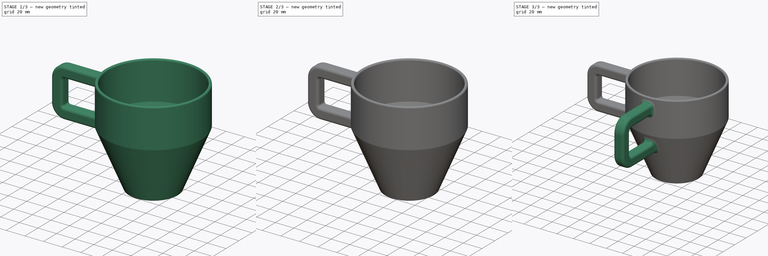
[diagram: build sequence overview — one tinted view per stage of 3, left to right]
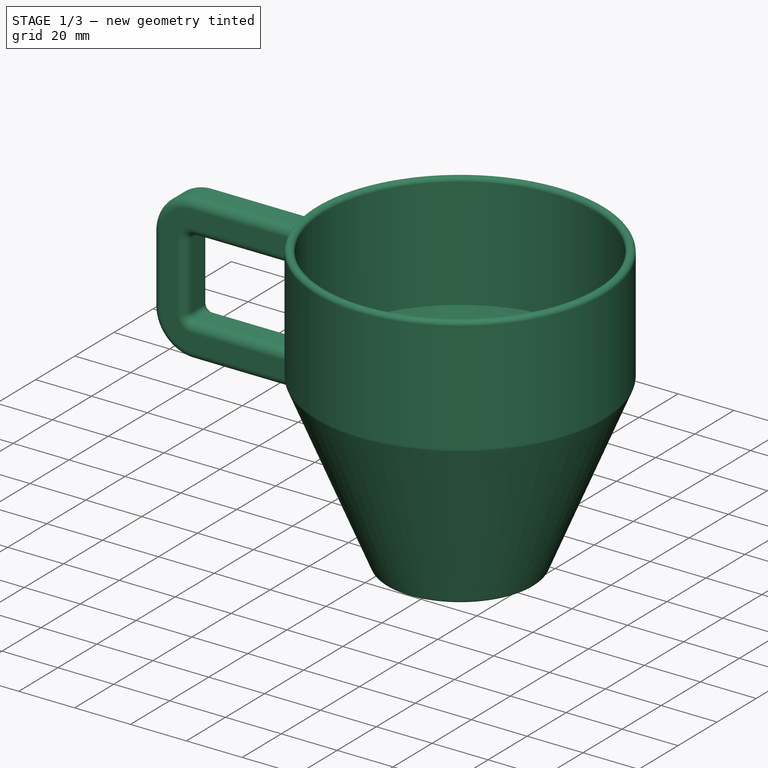
[diagram: stage 1 of 3 — iso view after this stage's code; geometry added in this stage tinted green]
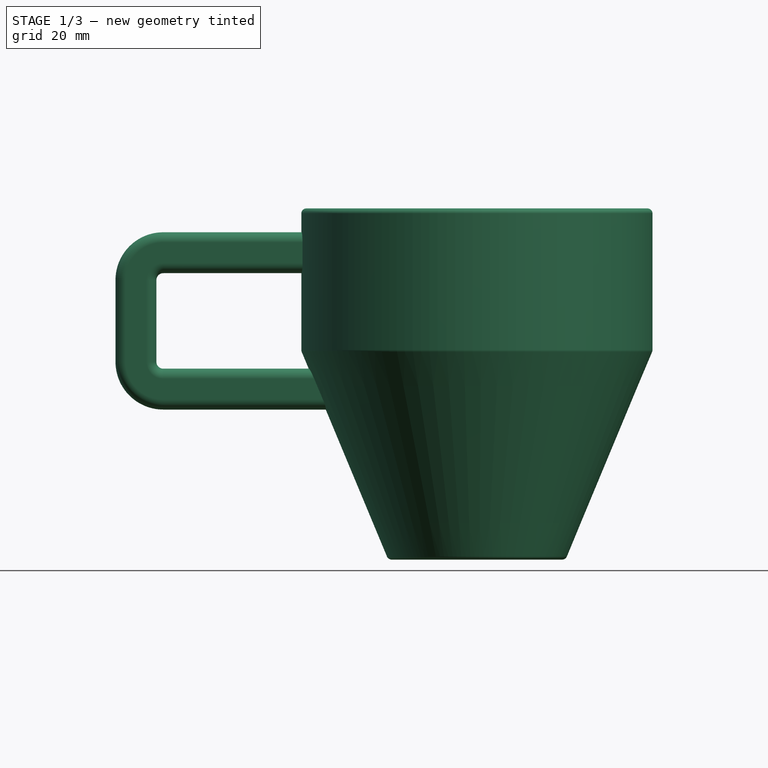
[diagram: stage 1 of 3 — front view after this stage's code; geometry added in this stage tinted green]
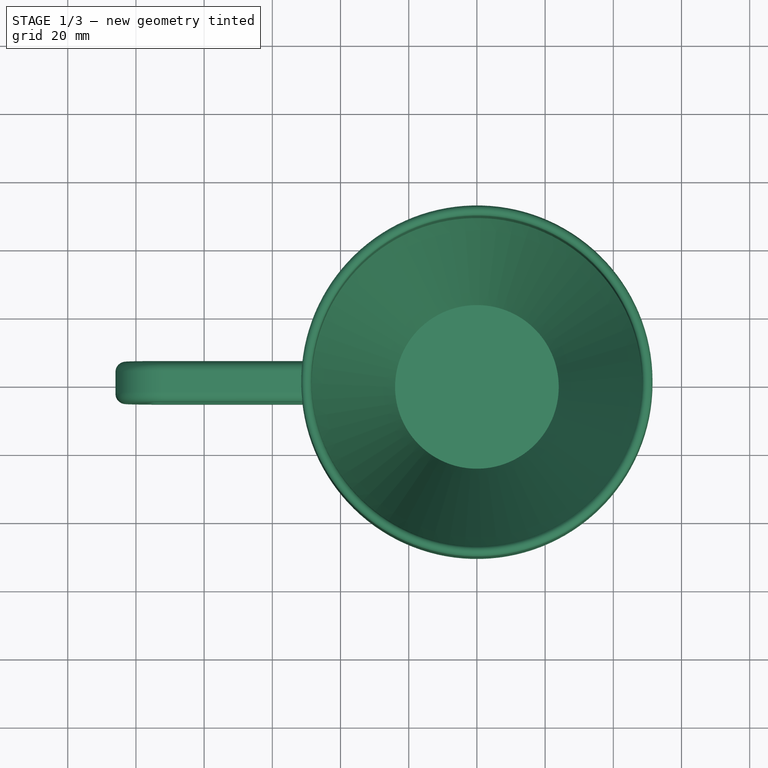
[diagram: stage 1 of 3 — top view after this stage's code; geometry added in this stage tinted green]
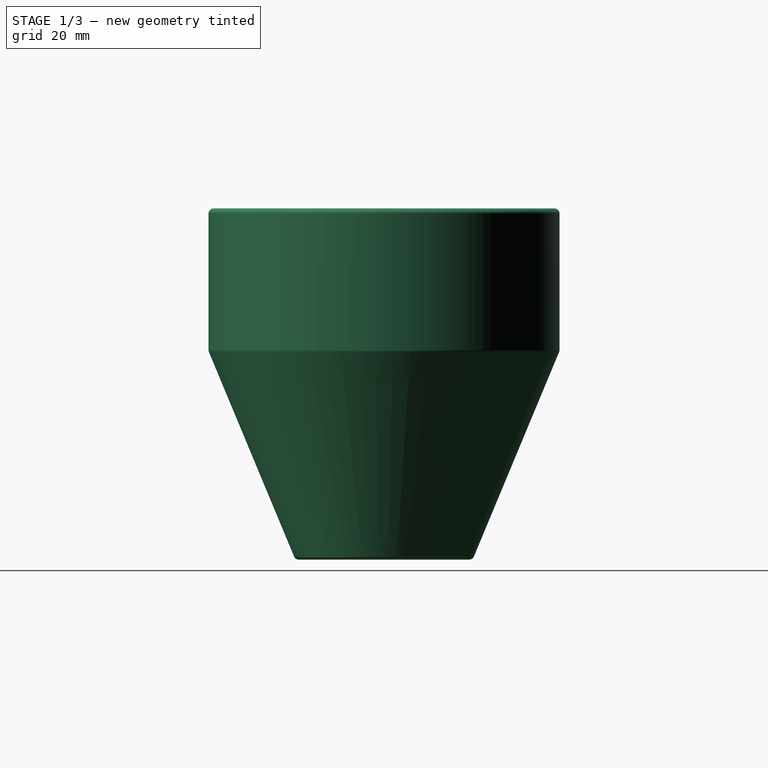
[diagram: stage 1 of 3 — right view after this stage's code; geometry added in this stage tinted green]
FCSTD DOCUMENT  (FreeCAD 1.0R39109 (Git))
Label: Lesson12-Kop
License: All rights reserved
LicenseURL: http://en.wikipedia.org/wiki/All_rights_reserved
objects: Sketcher::SketchObject×6, PartDesign::Revolution×2, PartDesign::AdditivePipe×2, PartDesign::Pad×2, PartDesign::Fillet×2, PartDesign::Body×2
note: 38 computed .brp shape members not serialized (recipe doc carries the construction recipe); baked Part::Feature solids carry a one-line shape summary decoded from their .brp

FEATURE [PartDesign::Body] Body
  AllowCompound = true
  Group = -> [Sketch,Revolution,Sketch001,Sketch002,AdditivePipe,Pad,Fillet]
  Origin = -> Origin
  Tip = -> Fillet
FEATURE [Sketcher::SketchObject] Sketch003
  ArcFitTolerance = 1e-06
  AttachmentSupport = -> [XZ_Plane001]
  FullyConstrained = false
  MakeInternals = false
  MapMode = 5
  Placement = pos=(0,0,0) rot=(1,0,0;1.5708rad)
  sketch-geometry (14):
    g0: LineSegment [constr] StartX=0 StartY=1.5 StartZ=0 EndX=-25 EndY=1.5 EndZ=0
    g1: LineSegment [constr] StartX=-25 StartY=1.5 StartZ=0 EndX=-50 EndY=61.5 EndZ=0
    g2: LineSegment [constr] StartX=-50 StartY=61.5 StartZ=0 EndX=-50 EndY=101.5 EndZ=0
    g3: ArcOfCircle CenterX=-50 CenterY=101.5 CenterZ=0 NormalX=0 NormalY=0 NormalZ=-1 AngleXU=-1.5708 Radius=1.5 StartAngle=1.5708 EndAngle=4.71239
    g4: LineSegment StartX=-48.5 StartY=61.8 StartZ=0 EndX=-48.5 EndY=101.5 EndZ=0
    g5: LineSegment StartX=-24 StartY=3 StartZ=0 EndX=-48.5 EndY=61.8 EndZ=0
    g6: LineSegment StartX=3e-16 StartY=3 StartZ=0 EndX=-24 EndY=3 EndZ=0
    g7: ArcOfCircle [constr] CenterX=0 CenterY=1.5 CenterZ=0 NormalX=0 NormalY=0 NormalZ=-1 AngleXU=0 Radius=1.5 StartAngle=1.5708 EndAngle=4.71239
    g8: LineSegment StartX=3e-16 StartY=0 StartZ=0 EndX=-25 EndY=0 EndZ=0
    g9: ArcOfCircle CenterX=-25 CenterY=1.5 CenterZ=0 NormalX=0 NormalY=0 NormalZ=-1 AngleXU=-3.14159 Radius=1.5 StartAngle=1.5708 EndAngle=2.7468
    g10: LineSegment StartX=-26.3846 StartY=0.923077 StartZ=0 EndX=-51.3846 EndY=60.9231 EndZ=0
    g11: ArcOfCircle CenterX=-50 CenterY=61.5 CenterZ=0 NormalX=0 NormalY=0 NormalZ=-1 AngleXU=-1.96559 Radius=1.5 StartAngle=1.5708 EndAngle=1.96559
    g12: LineSegment StartX=-51.5 StartY=61.5 StartZ=0 EndX=-51.5 EndY=101.5 EndZ=0
    g13: LineSegment StartX=3e-16 StartY=3 StartZ=0 EndX=3e-16 EndY=0 EndZ=0
  constraints (23):
    c: Coincident(g0,g1)
    c: Coincident(g1,g2)
    c: Vertical(g2)
    c: Horizontal(g0)
    c: PointOnObject(g0,g-2)
    c: DistanceX(g0,g0) = 25
    c: DistanceY(g0,g1) = 60
    c: DistanceY(g1,g2) = 40
    c: Distance(g-1,g0) = 1.5
    c: DistanceX(g2,g0) = 50
    c: Tangent(g3,g4) = -1.5708
    c: Tangent(g3,g12) = 1.5708
    c: Coincident(g4,g5)
    c: Coincident(g5,g6)
    c: Tangent(g6,g7) = -1.5708
    c: Tangent(g7,g8) = 1.5708
    c: Tangent(g8,g9) = 1.5708
    c: Tangent(g9,g10) = 1.5708
    c: Tangent(g10,g11) = 1.5708
    c: Tangent(g11,g12) = 1.5708
    c: Coincident(g13,g6)
    c: Coincident(g13,g7)
    c: Vertical(g13)
FEATURE [PartDesign::Revolution] Revolution001
  Angle = 360
  Angle2 = 60
  Axis = (0,2e-16,1)
  Base = (0,0,0)
  Placement = pos=(0,0,0) rot=(1,0,0;1.5708rad)
  Profile = -> Sketch003
  ReferenceAxis = -> Sketch003 [V_Axis]
  Refine = true
  Suppressed = false
  Type = 0
FEATURE [Sketcher::SketchObject] Sketch005  label="Path001"
  ArcFitTolerance = 1e-06
  AttachmentSupport = -> [XZ_Plane001]
  FullyConstrained = true
  MakeInternals = false
  MapMode = 5
  Placement = pos=(0,0,0) rot=(1,0,0;1.5708rad)
  sketch-geometry (7):
    g0: LineSegment StartX=-50 StartY=90 StartZ=0 EndX=-92 EndY=90 EndZ=0
    g1: LineSegment StartX=-100 StartY=82 StartZ=0 EndX=-100 EndY=58 EndZ=0
    g2: LineSegment StartX=-92 StartY=50 StartZ=0 EndX=-62 EndY=50 EndZ=0
    g3: ArcOfCircle CenterX=-92 CenterY=82 CenterZ=0 NormalX=0 NormalY=0 NormalZ=1 AngleXU=0 Radius=8 StartAngle=1.5708 EndAngle=3.14159
    g4: GeomPoint [constr] X=-100 Y=90 Z=0
    g5: ArcOfCircle CenterX=-92 CenterY=58 CenterZ=0 NormalX=0 NormalY=0 NormalZ=1 AngleXU=0 Radius=8 StartAngle=3.14159 EndAngle=4.71239
    g6: GeomPoint [constr] X=-100 Y=50 Z=0
  constraints (18):
    c: Horizontal(g0)
    c: Vertical(g1)
    c: Horizontal(g2)
    c: PointOnObject(g4,g0)
    c: PointOnObject(g4,g1)
    c: Tangent(g0,g3) = -1.5708
    c: Tangent(g1,g3) = -1.5708
    c: PointOnObject(g6,g1)
    c: PointOnObject(g6,g2)
    c: Tangent(g1,g5) = -1.5708
    c: Tangent(g2,g5) = -1.5708
    c: Equal(g5,g3)
    c: Radius(g3) = 8
    c: DistanceY(g-1,g0) = 90
    c: DistanceX(g0,g-1) = 50
    c: DistanceX(g1,g0) = 50
    c: DistanceY(g2,g0) = 40
    c: DistanceX(g2,g2) = 30
FEATURE [Sketcher::SketchObject] Sketch004  label="Profile001"
  ArcFitTolerance = 1e-06
  AttachmentSupport = -> [Sketch005]
  FullyConstrained = true
  MakeInternals = false
  MapMode = 7
  Placement = pos=(-50,2e-14,90) rot=(0.57735,0.57735,0.57735;2.0944rad)
  sketch-geometry (10):
    g0: LineSegment StartX=-3 StartY=-6 StartZ=0 EndX=3 EndY=-6 EndZ=0
    g1: LineSegment StartX=6 StartY=-3 StartZ=0 EndX=6 EndY=3 EndZ=0
    g2: LineSegment StartX=3 StartY=6 StartZ=0 EndX=-3 EndY=6 EndZ=0
    g3: LineSegment StartX=-6 StartY=3 StartZ=0 EndX=-6 EndY=-3 EndZ=0
    g4: ArcOfCircle CenterX=-3 CenterY=-3 CenterZ=0 NormalX=0 NormalY=0 NormalZ=1 AngleXU=0 Radius=3 StartAngle=3.14159 EndAngle=4.71239
    g5: ArcOfCircle CenterX=3 CenterY=-3 CenterZ=0 NormalX=0 NormalY=0 NormalZ=1 AngleXU=0 Radius=3 StartAngle=4.71239 EndAngle=6.28319
    g6: ArcOfCircle CenterX=3 CenterY=3 CenterZ=0 NormalX=0 NormalY=0 NormalZ=1 AngleXU=0 Radius=3 StartAngle=0 EndAngle=1.5708
    g7: ArcOfCircle CenterX=-3 CenterY=3 CenterZ=0 NormalX=0 NormalY=0 NormalZ=1 AngleXU=0 Radius=3 StartAngle=1.5708 EndAngle=3.14159
    g8: GeomPoint [constr] X=6 Y=6 Z=0
    g9: GeomPoint [constr] X=7.07e-14 Y=4.77e-14 Z=0
  constraints (22):
    c: Tangent(g0,g4) = -1.5708
    c: Tangent(g0,g5) = -1.5708
    c: Tangent(g1,g5) = -1.5708
    c: Tangent(g1,g6) = -1.5708
    c: Tangent(g2,g6) = -1.5708
    c: Tangent(g2,g7) = -1.5708
    c: Tangent(g3,g7) = -1.5708
    c: Tangent(g3,g4) = -1.5708
    c: Horizontal(g0)
    c: Horizontal(g2)
    c: Vertical(g1)
    c: Vertical(g3)
    c: Equal(g4,g5)
    c: Equal(g5,g6)
    c: Equal(g6,g7)
    c: Symmetric(g2,g0,g9)
    c: PointOnObject(g8,g1)
    c: PointOnObject(g8,g2)
    c: Distance(g1,g3) = 12
    c: Distance(g0,g2) = 12
    c: Radius(g5) = 3
    c: Coincident(g9,g-1)
FEATURE [PartDesign::AdditivePipe] AdditivePipe001
  AuxilleryCurvelinear = true
  AuxillerySpineTangent = false
  BaseFeature = -> Revolution001
  Binormal = (0,0,0)
  Mode = 0
  Placement = pos=(0,0,0) rot=(1,0,0;1.5708rad)
  Profile = -> Sketch004
  Refine = true
  Spine = -> Sketch005
  SpineTangent = false
  Suppressed = false
  Transformation = 0
  Transition = 0
FEATURE [PartDesign::Pad] Pad001
  BaseFeature = -> AdditivePipe001
  Direction = (1,0,0)
  Length = 10
  Length2 = 10
  Placement = pos=(0,0,0) rot=(1,0,0;1.5708rad)
  Profile = -> AdditivePipe001 [Face40]
  Refine = true
  Suppressed = false
  Type = 3
  UpToFace = -> AdditivePipe001 [Face18]
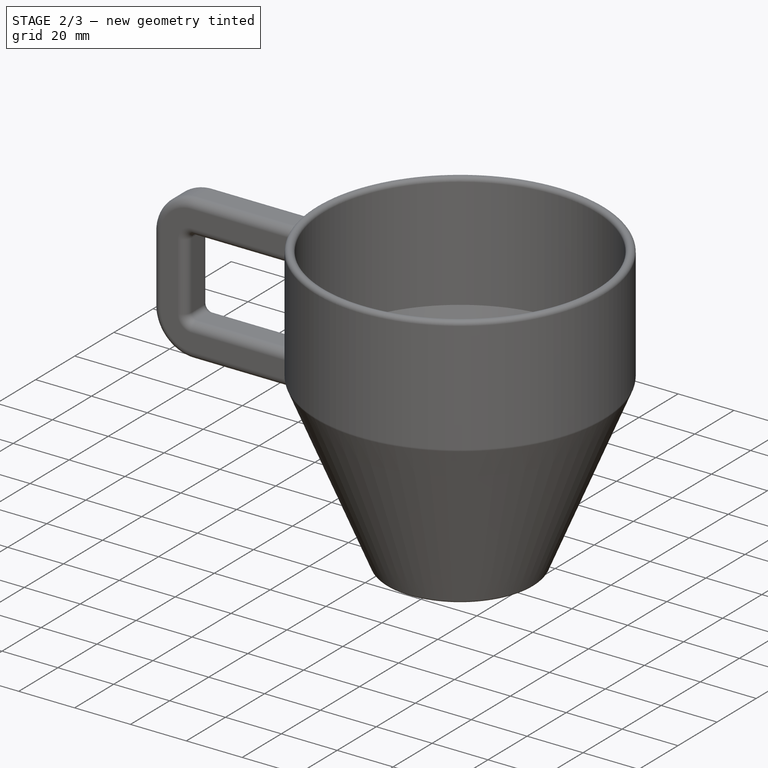
[diagram: stage 2 of 3 — iso view after this stage's code; geometry added in this stage tinted green]
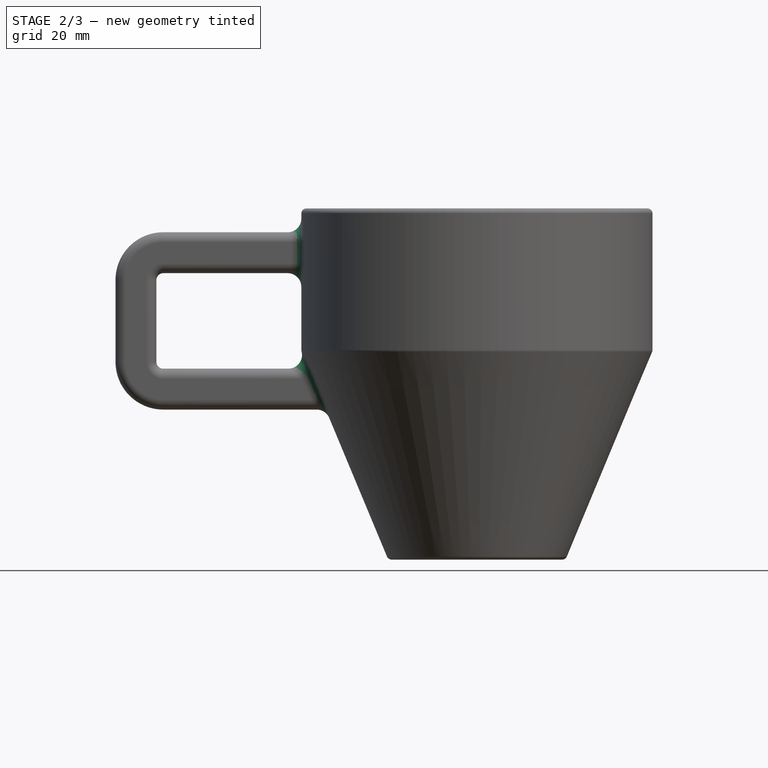
[diagram: stage 2 of 3 — front view after this stage's code; geometry added in this stage tinted green]
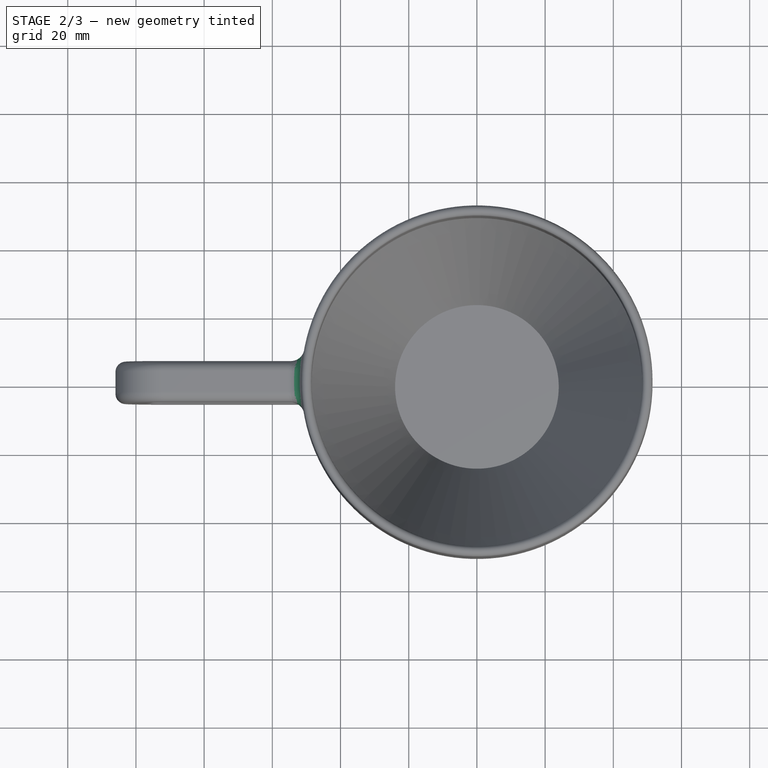
[diagram: stage 2 of 3 — top view after this stage's code; geometry added in this stage tinted green]
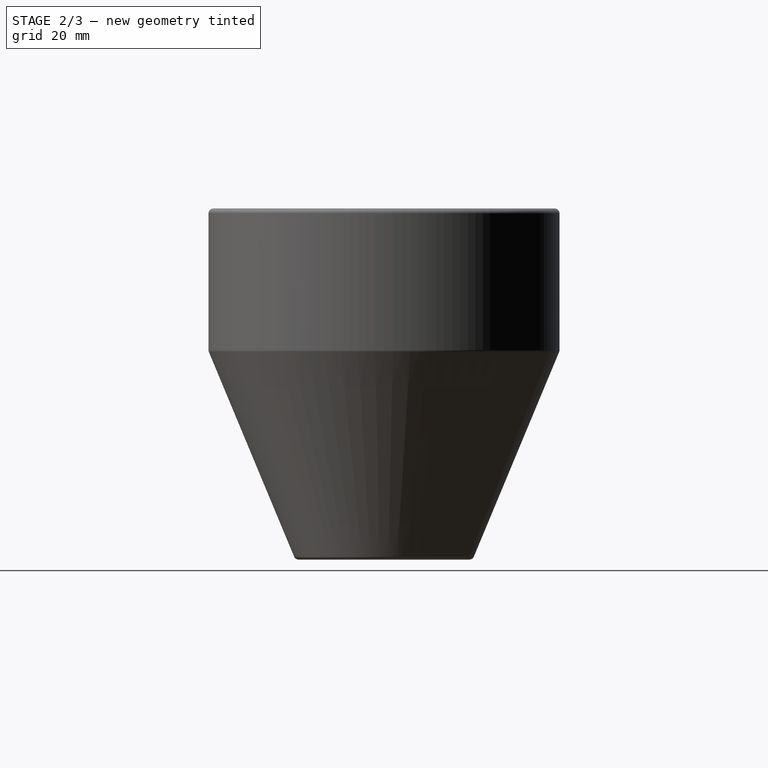
[diagram: stage 2 of 3 — right view after this stage's code; geometry added in this stage tinted green]
FEATURE [Sketcher::SketchObject] Sketch
  ArcFitTolerance = 1e-06
  AttachmentSupport = -> [XZ_Plane]
  FullyConstrained = false
  MakeInternals = false
  MapMode = 5
  Placement = pos=(0,0,0) rot=(1,0,0;1.5708rad)
  sketch-geometry (14):
    g0: LineSegment [constr] StartX=0 StartY=1.5 StartZ=0 EndX=-25 EndY=1.5 EndZ=0
    g1: LineSegment [constr] StartX=-25 StartY=1.5 StartZ=0 EndX=-50 EndY=61.5 EndZ=0
    g2: LineSegment [constr] StartX=-50 StartY=61.5 StartZ=0 EndX=-50 EndY=101.5 EndZ=0
    g3: ArcOfCircle CenterX=-50 CenterY=101.5 CenterZ=0 NormalX=0 NormalY=0 NormalZ=-1 AngleXU=-1.5708 Radius=1.5 StartAngle=1.5708 EndAngle=4.71239
    g4: LineSegment StartX=-48.5 StartY=61.8 StartZ=0 EndX=-48.5 EndY=101.5 EndZ=0
    g5: LineSegment StartX=-24 StartY=3 StartZ=0 EndX=-48.5 EndY=61.8 EndZ=0
    g6: LineSegment StartX=-1e-16 StartY=3 StartZ=0 EndX=-24 EndY=3 EndZ=0
    g7: ArcOfCircle [constr] CenterX=0 CenterY=1.5 CenterZ=0 NormalX=0 NormalY=0 NormalZ=-1 AngleXU=0 Radius=1.5 StartAngle=1.5708 EndAngle=4.71239
    g8: LineSegment StartX=-1e-16 StartY=0 StartZ=0 EndX=-25 EndY=0 EndZ=0
    g9: ArcOfCircle CenterX=-25 CenterY=1.5 CenterZ=0 NormalX=0 NormalY=0 NormalZ=-1 AngleXU=-3.14159 Radius=1.5 StartAngle=1.5708 EndAngle=2.7468
    g10: LineSegment StartX=-26.3846 StartY=0.923077 StartZ=0 EndX=-51.3846 EndY=60.9231 EndZ=0
    g11: ArcOfCircle CenterX=-50 CenterY=61.5 CenterZ=0 NormalX=0 NormalY=0 NormalZ=-1 AngleXU=-1.96559 Radius=1.5 StartAngle=1.5708 EndAngle=1.96559
    g12: LineSegment StartX=-51.5 StartY=61.5 StartZ=0 EndX=-51.5 EndY=101.5 EndZ=0
    g13: LineSegment StartX=-1e-16 StartY=3 StartZ=0 EndX=-1e-16 EndY=0 EndZ=0
  constraints (23):
    c: Coincident(g0,g1)
    c: Coincident(g1,g2)
    c: Vertical(g2)
    c: Horizontal(g0)
    c: DistanceX(g0,g0) = 25
    c: DistanceX(g2,g-1) = 50
    c: DistanceY(g2,g2) = 40
    c: DistanceY(g0,g1) = 60
    c: PointOnObject(g0,g-2)
    c: Distance(g0,g-1) = 1.5
    c: Tangent(g3,g4) = -1.5708
    c: Tangent(g3,g12) = 1.5708
    c: Coincident(g4,g5)
    c: Coincident(g5,g6)
    c: Tangent(g6,g7) = -1.5708
    c: Tangent(g7,g8) = 1.5708
    c: Tangent(g8,g9) = 1.5708
    c: Tangent(g9,g10) = 1.5708
    c: Tangent(g10,g11) = 1.5708
    c: Tangent(g11,g12) = 1.5708
    c: Coincident(g13,g6)
    c: Coincident(g13,g7)
    c: Vertical(g13)
FEATURE [PartDesign::Revolution] Revolution
  Angle = 360
  Angle2 = 60
  Axis = (0,2e-16,1)
  Base = (0,0,0)
  Placement = pos=(0,0,0) rot=(1,0,0;1.5708rad)
  Profile = -> Sketch
  ReferenceAxis = -> Sketch [V_Axis]
  Refine = true
  Suppressed = false
  Type = 0
FEATURE [PartDesign::Fillet] Fillet001
  Base = -> Pad001 [Edge79,Edge8]
  BaseFeature = -> Pad001
  Placement = pos=(0,0,0) rot=(1,0,0;1.5708rad)
  Radius = 4
  Refine = true
  SupportTransform = false
  Suppressed = false
  UseAllEdges = false
FEATURE [PartDesign::Body] Body001
  AllowCompound = true
  Group = -> [Sketch003,Revolution001,Sketch004,Sketch005,AdditivePipe001,Pad001,Fillet001]
  Origin = -> Origin001
  Tip = -> Fillet001
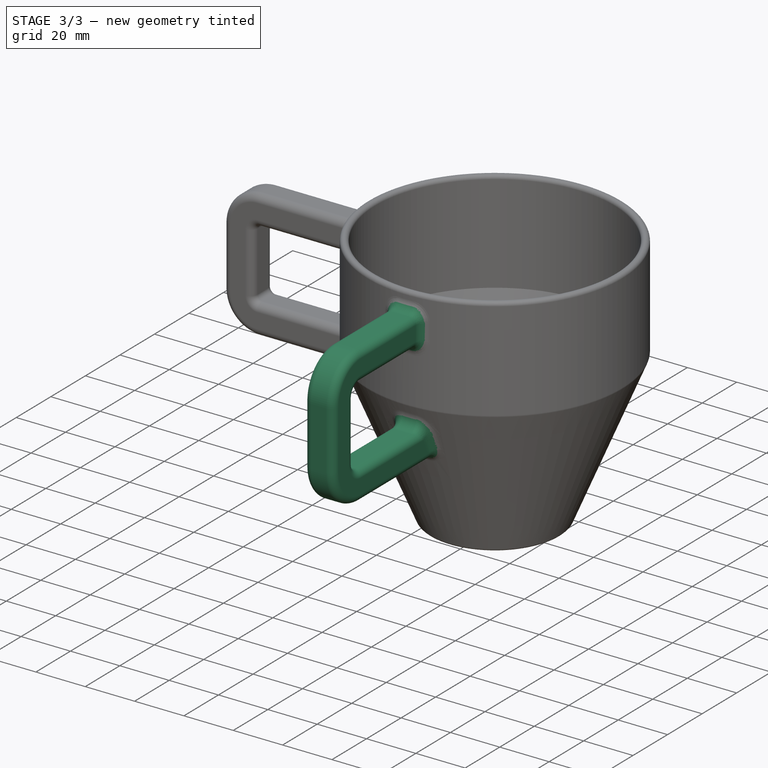
[diagram: stage 3 of 3 — iso view after this stage's code; geometry added in this stage tinted green]
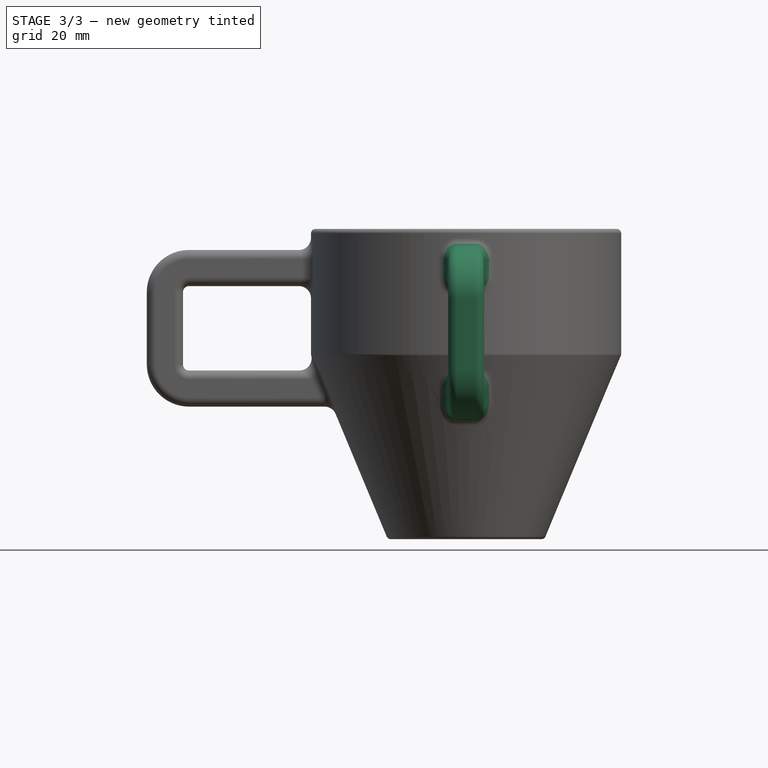
[diagram: stage 3 of 3 — front view after this stage's code; geometry added in this stage tinted green]
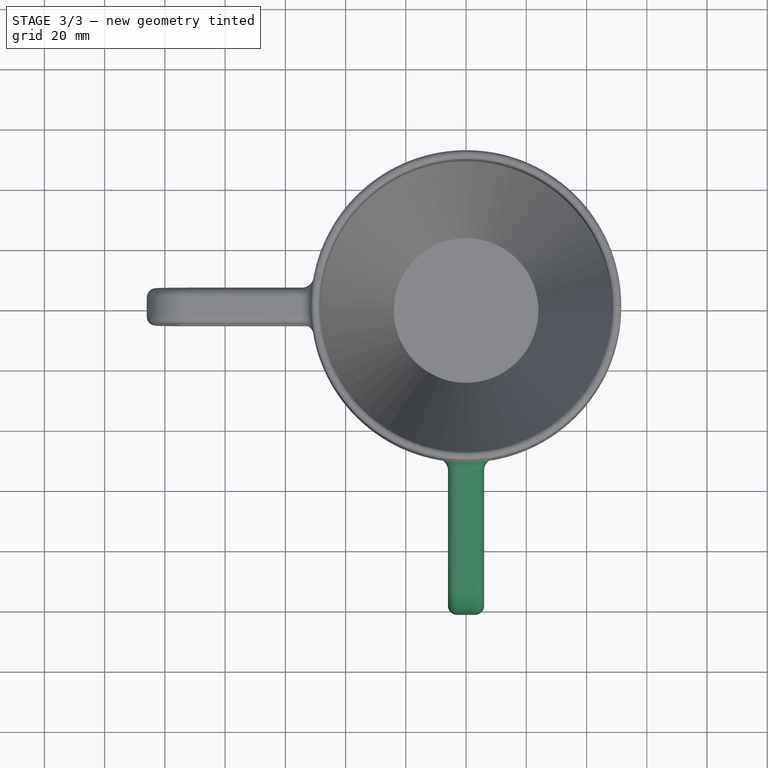
[diagram: stage 3 of 3 — top view after this stage's code; geometry added in this stage tinted green]
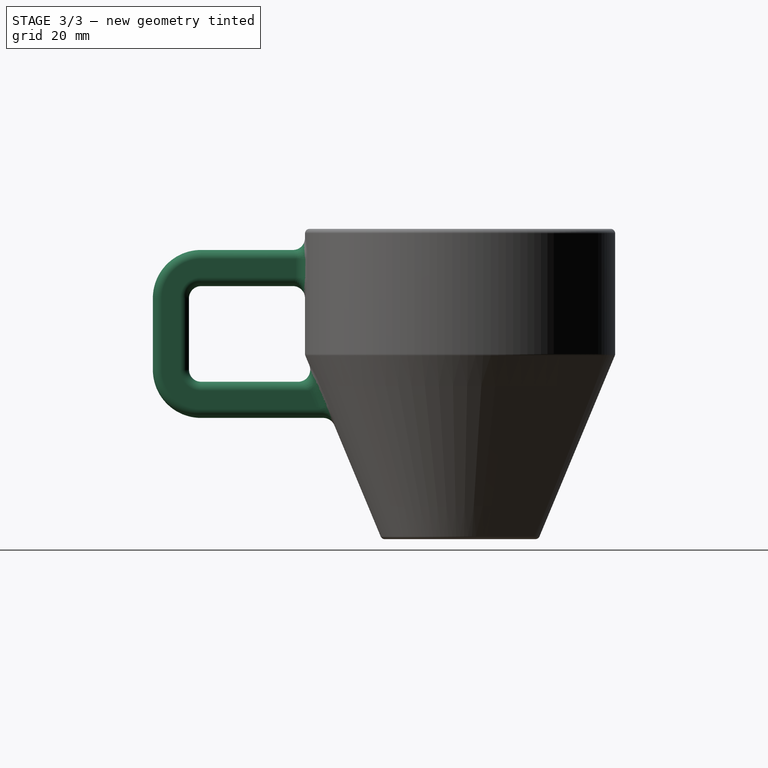
[diagram: stage 3 of 3 — right view after this stage's code; geometry added in this stage tinted green]
FEATURE [Sketcher::SketchObject] Sketch002  label="Path"
  ArcFitTolerance = 1e-06
  AttachmentSupport = -> [YZ_Plane]
  FullyConstrained = false
  MakeInternals = false
  MapMode = 5
  Placement = pos=(0,0,0) rot=(0.57735,0.57735,0.57735;2.0944rad)
  sketch-geometry (7):
    g0: LineSegment StartX=-50 StartY=90 StartZ=0 EndX=-86 EndY=90 EndZ=0
    g1: LineSegment StartX=-96 StartY=80 StartZ=0 EndX=-96 EndY=56.2404 EndZ=0
    g2: LineSegment StartX=-86 StartY=46.2404 StartZ=0 EndX=-56 EndY=46.2404 EndZ=0
    g3: ArcOfCircle CenterX=-86 CenterY=80 CenterZ=0 NormalX=0 NormalY=0 NormalZ=1 AngleXU=0 Radius=10 StartAngle=1.5708 EndAngle=3.14159
    g4: GeomPoint [constr] X=-96 Y=90 Z=0
    g5: ArcOfCircle CenterX=-86 CenterY=56.2404 CenterZ=0 NormalX=0 NormalY=0 NormalZ=1 AngleXU=0 Radius=10 StartAngle=3.14159 EndAngle=4.71239
    g6: GeomPoint [constr] X=-96 Y=46.2404 Z=0
  constraints (17):
    c: Vertical(g1)
    c: Horizontal(g2)
    c: Horizontal(g0)
    c: PointOnObject(g4,g0)
    c: PointOnObject(g4,g1)
    c: Tangent(g0,g3) = -1.5708
    c: Tangent(g1,g3) = -1.5708
    c: PointOnObject(g6,g1)
    c: PointOnObject(g6,g2)
    c: Tangent(g1,g5) = -1.5708
    c: Tangent(g2,g5) = -1.5708
    c: Radius(g3) = 10
    c: DistanceX(g2,g2) = 30
    c: Equal(g3,g5)
    c: DistanceX(g0,g-1) = 50
    c: DistanceX(g1,g0) = 46
    c: Distance(g0,g-1) = 90
FEATURE [Sketcher::SketchObject] Sketch001  label="Profile"
  ArcFitTolerance = 1e-06
  AttachmentSupport = -> [Sketch002]
  FullyConstrained = true
  MakeInternals = false
  MapMode = 7
  Placement = pos=(0,-50,90) rot=(0,0.707107,0.707107;3.14159rad)
  sketch-geometry (10):
    g0: LineSegment StartX=-3 StartY=-6 StartZ=0 EndX=3 EndY=-6 EndZ=0
    g1: LineSegment StartX=6 StartY=-3 StartZ=0 EndX=6 EndY=3 EndZ=0
    g2: LineSegment StartX=3 StartY=6 StartZ=0 EndX=-3 EndY=6 EndZ=0
    g3: LineSegment StartX=-6 StartY=3 StartZ=0 EndX=-6 EndY=-3 EndZ=0
    g4: ArcOfCircle CenterX=-3 CenterY=-3 CenterZ=0 NormalX=0 NormalY=0 NormalZ=1 AngleXU=0 Radius=3 StartAngle=3.14159 EndAngle=4.71239
    g5: ArcOfCircle CenterX=3 CenterY=-3 CenterZ=0 NormalX=0 NormalY=0 NormalZ=1 AngleXU=0 Radius=3 StartAngle=4.71239 EndAngle=6.28319
    g6: ArcOfCircle CenterX=3 CenterY=3 CenterZ=0 NormalX=0 NormalY=0 NormalZ=1 AngleXU=0 Radius=3 StartAngle=0 EndAngle=1.5708
    g7: ArcOfCircle CenterX=-3 CenterY=3 CenterZ=0 NormalX=0 NormalY=0 NormalZ=1 AngleXU=0 Radius=3 StartAngle=1.5708 EndAngle=3.14159
    g8: GeomPoint [constr] X=6 Y=6 Z=0
    g9: GeomPoint [constr] X=0 Y=0 Z=0
  constraints (22):
    c: Tangent(g0,g4) = -1.5708
    c: Tangent(g0,g5) = -1.5708
    c: Tangent(g1,g5) = -1.5708
    c: Tangent(g1,g6) = -1.5708
    c: Tangent(g2,g6) = -1.5708
    c: Tangent(g2,g7) = -1.5708
    c: Tangent(g3,g7) = -1.5708
    c: Tangent(g3,g4) = -1.5708
    c: Horizontal(g0)
    c: Horizontal(g2)
    c: Vertical(g1)
    c: Vertical(g3)
    c: Equal(g4,g5)
    c: Equal(g5,g6)
    c: Equal(g6,g7)
    c: Symmetric(g2,g0,g9)
    c: PointOnObject(g8,g1)
    c: PointOnObject(g8,g2)
    c: Distance(g1,g3) = 12
    c: Distance(g0,g2) = 12
    c: Radius(g5) = 3
    c: Coincident(g9,g-1)
FEATURE [PartDesign::AdditivePipe] AdditivePipe
  AuxilleryCurvelinear = true
  AuxillerySpineTangent = false
  BaseFeature = -> Revolution
  Binormal = (0,0,0)
  Mode = 0
  Placement = pos=(0,0,0) rot=(1,0,0;1.5708rad)
  Profile = -> Sketch001
  Refine = true
  Spine = -> Sketch002
  SpineTangent = false
  Suppressed = false
  Transformation = 0
  Transition = 0
FEATURE [PartDesign::Pad] Pad
  BaseFeature = -> AdditivePipe
  Direction = (0,1,2e-16)
  Length = 10
  Length2 = 10
  Placement = pos=(0,0,0) rot=(1,0,0;1.5708rad)
  Profile = -> AdditivePipe [Face40]
  Refine = true
  Suppressed = false
  Type = 3
  UpToFace = -> AdditivePipe [Face12]
FEATURE [PartDesign::Fillet] Fillet
  Base = -> Pad [Edge9,Edge42]
  BaseFeature = -> Pad
  Placement = pos=(0,0,0) rot=(1,0,0;1.5708rad)
  Radius = 4
  Refine = true
  SupportTransform = false
  Suppressed = false
  UseAllEdges = false
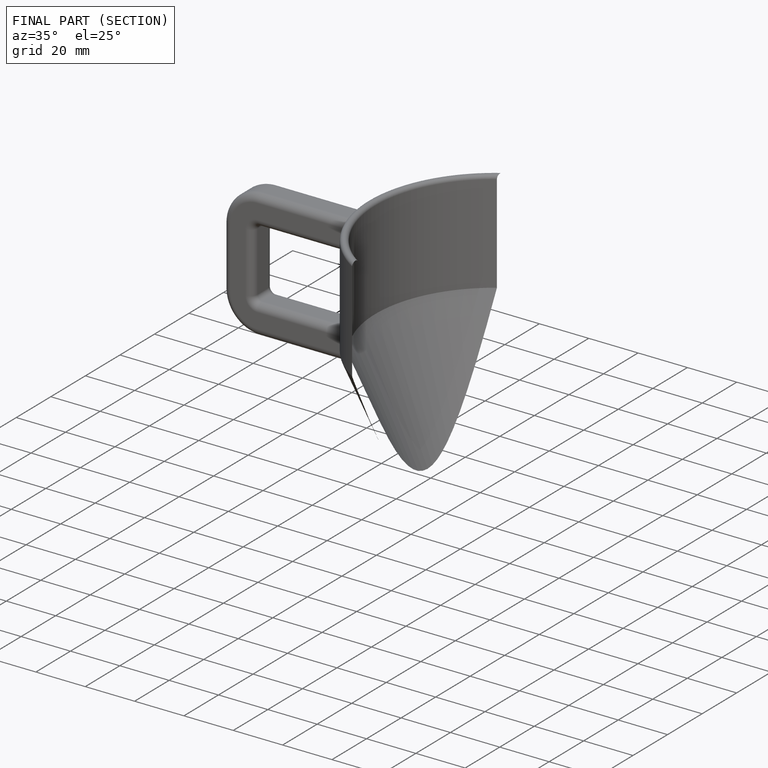
[diagram: finished part — half-section view (interior)]
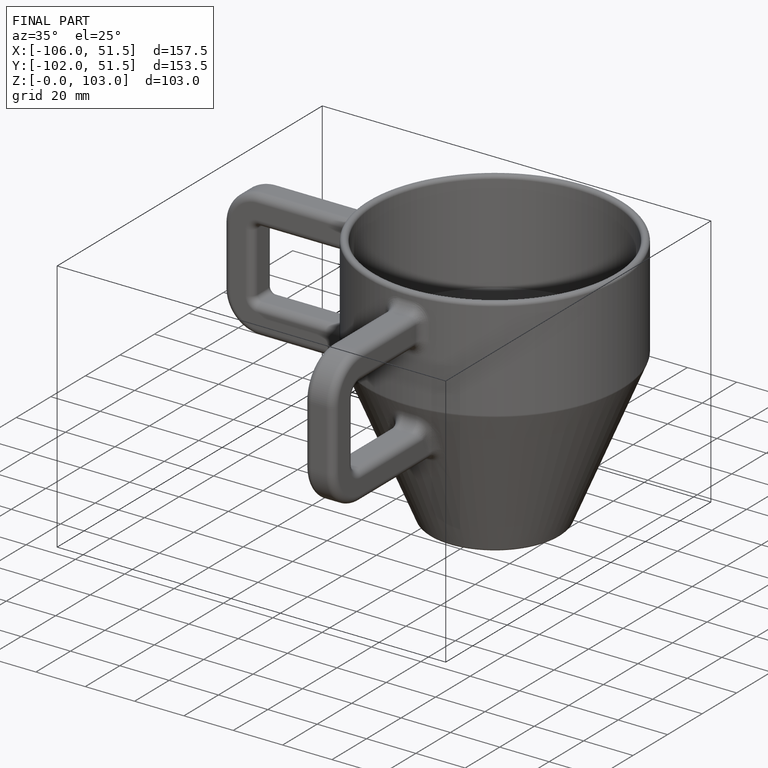
[diagram: finished part — iso view with bounding-box wireframe]
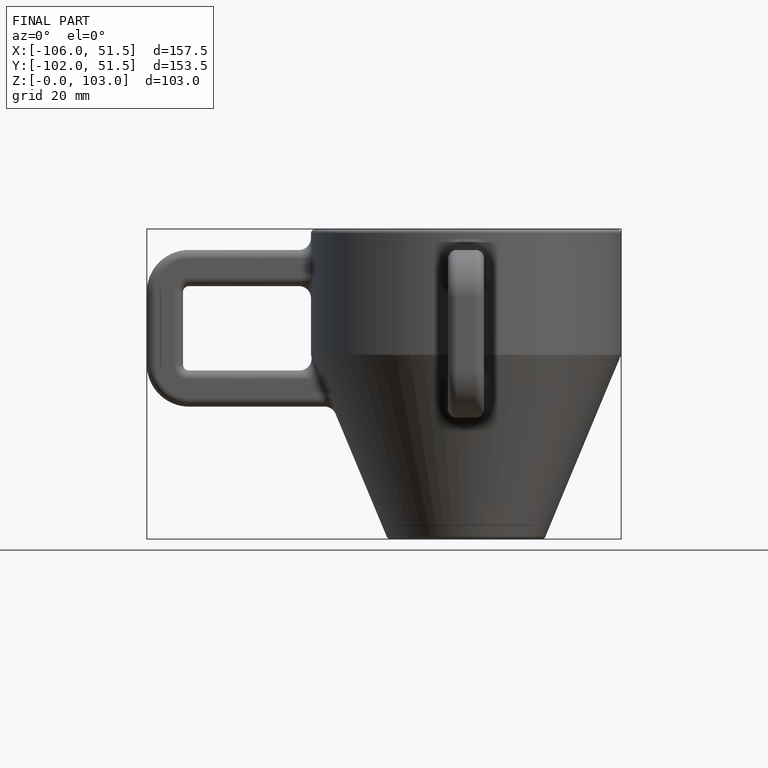
[diagram: finished part — front view with bounding-box wireframe]
